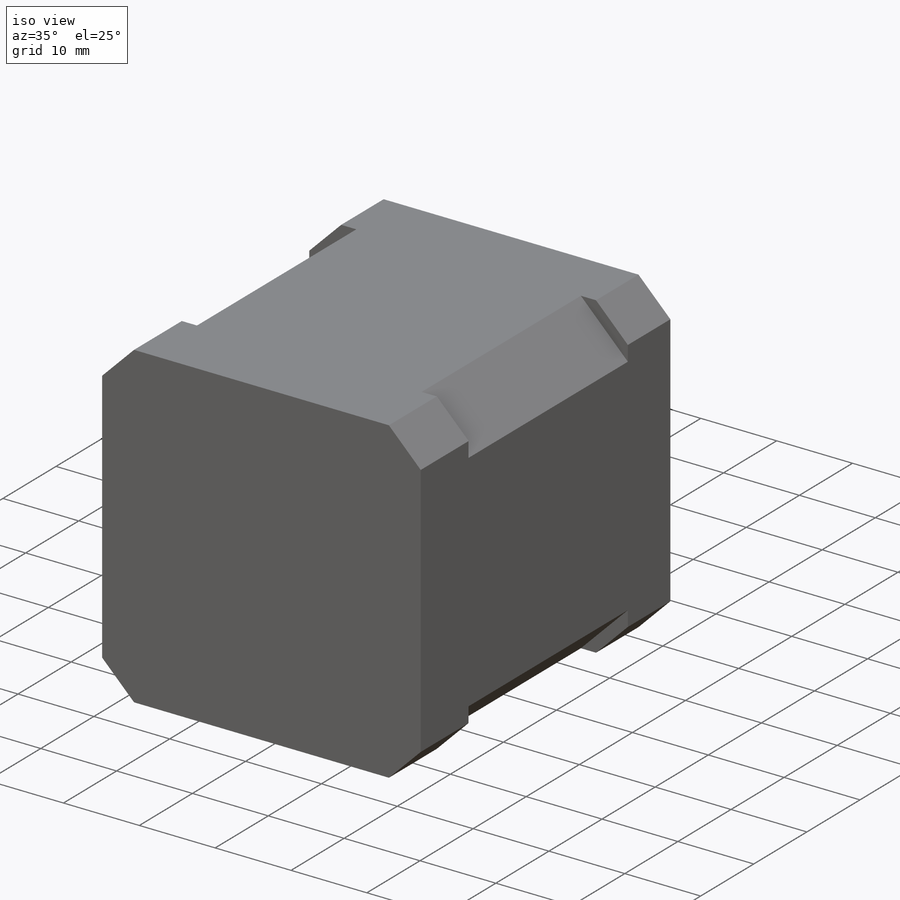
[diagram: iso view]
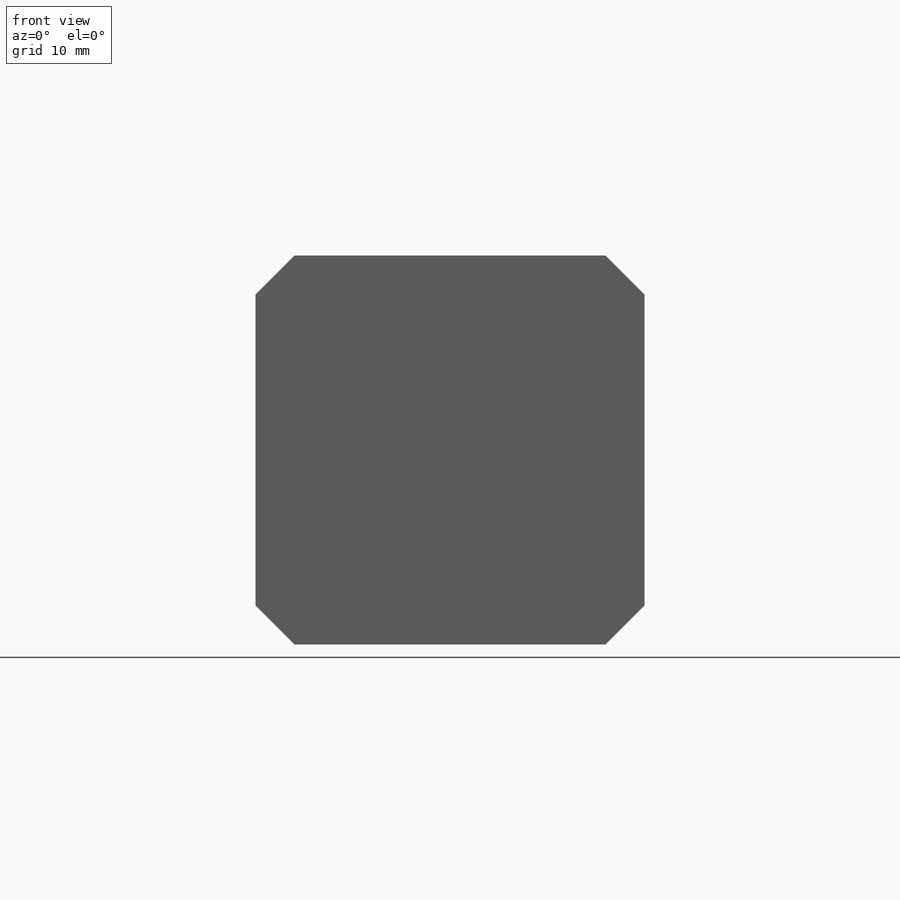
[diagram: front view]
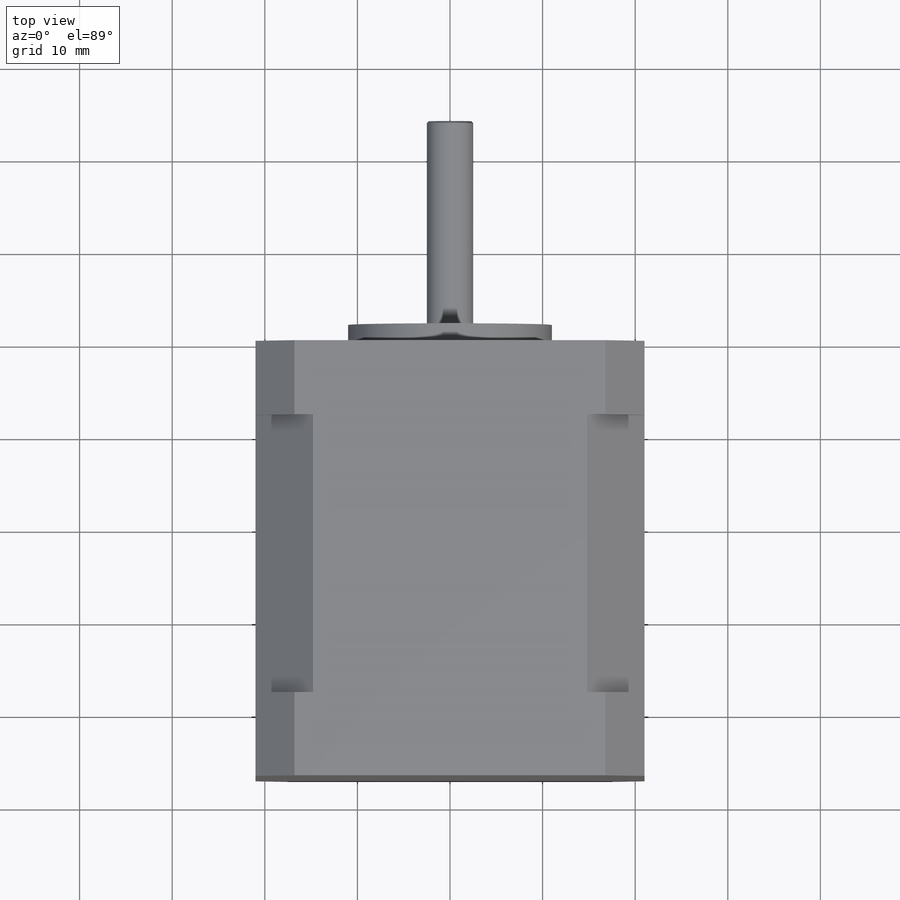
[diagram: top view]
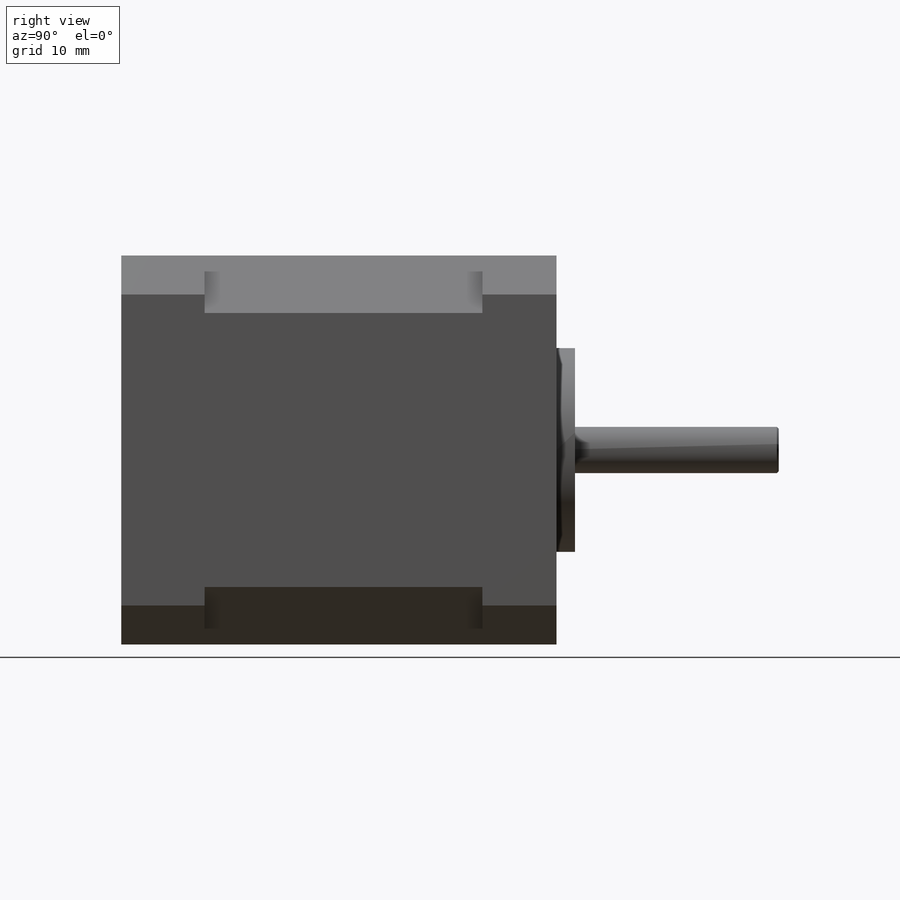
[diagram: right view]
SOLIDWORKS PART (.sldprt)
format: sldprt  version: not decoded by parser v0  size: 288,256 bytes
history: native  units: mm
features: sketch x8, extrude x5, chamfer x4, plane x3, cut_extrude x3, material x1 (+10 scaffold rows collapsed)
feature tree (34):
  scaffold x10  (default folders/planes/origin — collapsed)
  material  "Matériau <non spécifié>"
  plane  "Plan de face"
  plane  "Plan de dessus"
  plane  "Plan de droite"
  sketch  "Esquisse1"  dims[D1=42.0mm D2=42.0mm]
  extrude  "Boss.-Extru.1"  Depth=8mm
  chamfer  "Chanfrein1"  Distance=4.2mm Angle=45deg
  sketch  "Esquisse3"  dims[D1=42.0mm D2=42.0mm]
  extrude  "Boss.-Extru.2"  Depth=30mm
  sketch  "Esquisse4"  dims[D1=42.0mm D2=42.0mm]
  extrude  "Boss.-Extru.3"  Depth=9mm
  chamfer  "Chanfrein3"  Distance=4.2mm Angle=45deg
  sketch  "Esquisse5"  dims[D1=22.0mm]
  extrude  "Boss.-Extru.4"  Depth=2mm
  sketch  "Esquisse6"  dims[D1=9.0mm]
  cut_extrude  "Enlèv. mat.-Extru.1"  Depth=3mm
  sketch  "Esquisse7"  dims[D1=5.0mm]
  extrude  "Boss.-Extru.5"  Depth=25mm
  chamfer  "Chanfrein4"  Distance=0.2mm Angle=45deg
  sketch  "Esquisse8"  dims[c1.D3=3.0mm c1.D1=5.0mm c1.D2=5.0mm c2.D1=31.0mm c2.D2=31.0mm]
  cut_extrude  "Enlèv. mat.-Extru.2"  Depth=5mm
  chamfer  "Chanfrein5"  Distance=0.2mm Angle=45deg
  sketch  "Esquisse9"  dims[D1=7.0mm D2=8.0mm D3=~6.275638mm]
  cut_extrude  "Enlèv. mat.-Extru.3"  Depth=2mm
decode coverage: 20 of 20 modeling features carry decoded parameters
note: ~ marks probable driven/reference dimensions
note: suppression state not decoded; provenance and decode notes live in map.json
